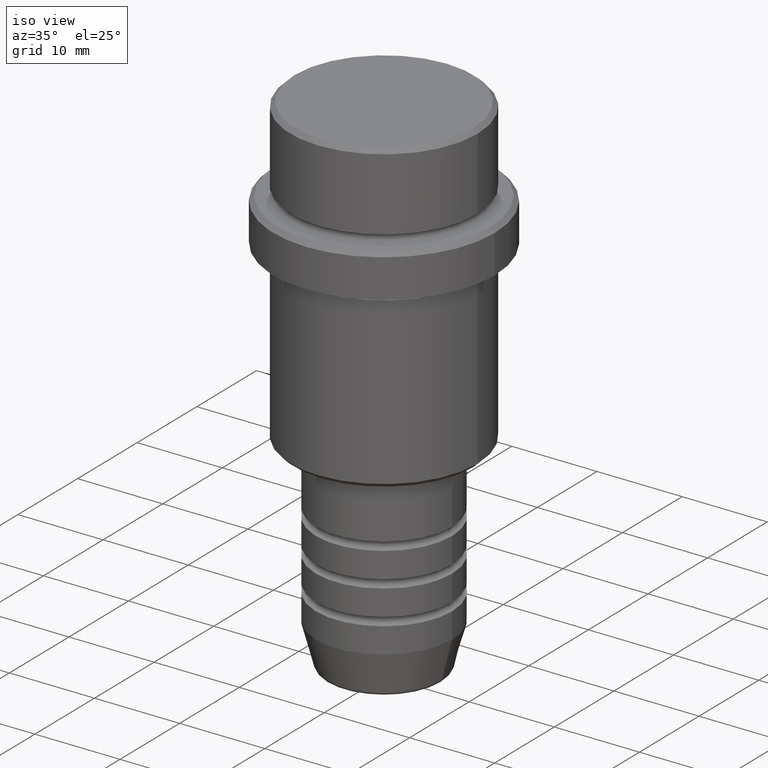
[diagram: clean part render]
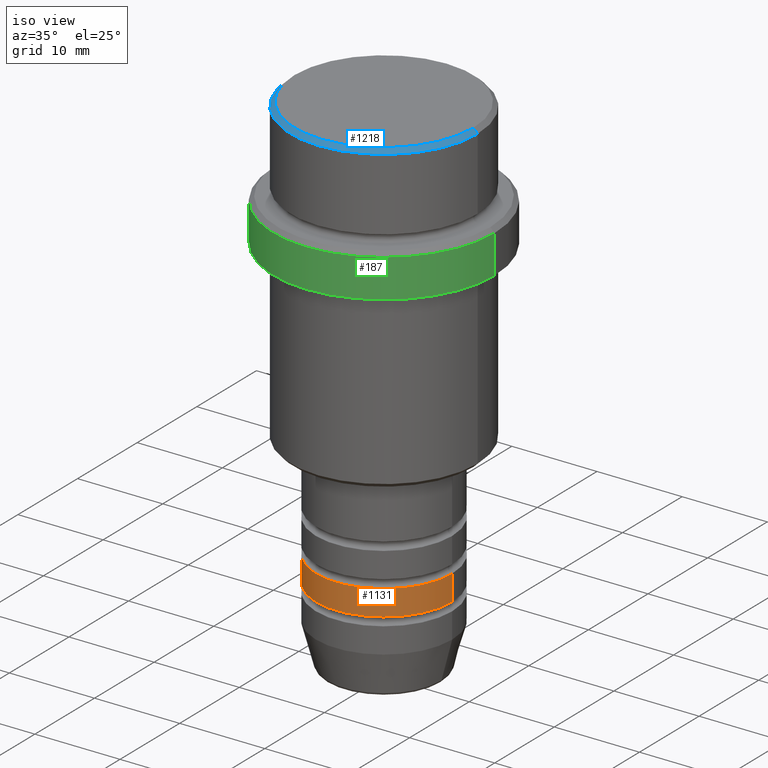
[diagram: same view with three faces highlighted in distinct colors, each labeled with its STEP entity id]
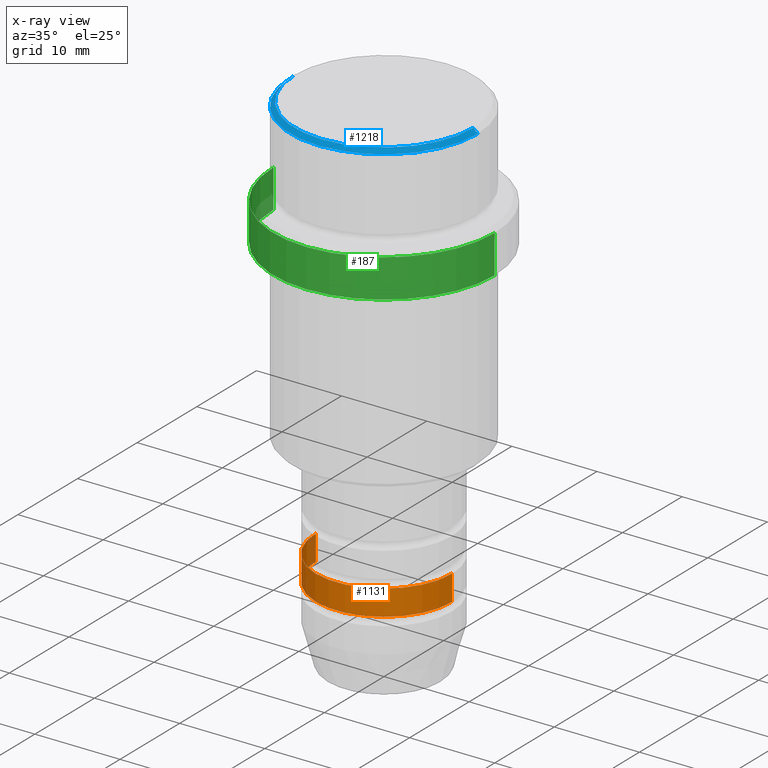
[diagram: x-ray of the same camera — body ghosted, the three highlighted faces saturated]
A machine part, iso view with three faces highlighted in distinct colors.
The next image is the same camera in x-ray (body ghosted, the three faces saturated) — at least one of them is partly hidden behind the body in this view.
Their STEP definitions:

[orange] entity #1131 — the highlighted cylindrical surface (partial cylindrical patch) has radius 8 mm, axis along (-0, -0, 1).
#48 = DIRECTION ( 'NONE',  ( 1.000000000000000000, 0.000000000000000000, 0.000000000000000000 ) ) ;
#63 = VERTEX_POINT ( 'NONE', #978 ) ;
#71 = LINE ( 'NONE', #1162, #369 ) ;
#151 = LINE ( 'NONE', #825, #703 ) ;
#166 = CARTESIAN_POINT ( 'NONE',  ( 0.000000000000000000, 0.000000000000000000, 0.000000000000000000 ) ) ;
#209 = DIRECTION ( 'NONE',  ( 1.000000000000000000, 0.000000000000000000, 0.000000000000000000 ) ) ;
#249 = EDGE_CURVE ( 'NONE', #468, #803, #860, .T. ) ;
#272 = FACE_OUTER_BOUND ( 'NONE', #1121, .T. ) ;
#363 = EDGE_CURVE ( 'NONE', #824, #63, #1342, .T. ) ;
#369 = VECTOR ( 'NONE', #704, 1000.000000000000000 ) ;
#468 = VERTEX_POINT ( 'NONE', #559 ) ;
#475 = AXIS2_PLACEMENT_3D ( 'NONE', #1087, #783, #882 ) ;
#510 = EDGE_CURVE ( 'NONE', #468, #824, #151, .T. ) ;
#529 = ORIENTED_EDGE ( 'NONE', *, *, #249, .T. ) ;
#559 = CARTESIAN_POINT ( 'NONE',  ( -8.000000000000000000, 9.797174393178825657E-16, -50.99999999999988631 ) ) ;
#676 = ORIENTED_EDGE ( 'NONE', *, *, #363, .F. ) ;
#678 = CARTESIAN_POINT ( 'NONE',  ( -8.000000000000000000, 9.797174393178825657E-16, -47.99999999999989342 ) ) ;
#697 = CARTESIAN_POINT ( 'NONE',  ( 8.000000000000000000, 0.000000000000000000, -50.99999999999988631 ) ) ;
#703 = VECTOR ( 'NONE', #1264, 1000.000000000000000 ) ;
#704 = DIRECTION ( 'NONE',  ( -0.000000000000000000, -0.000000000000000000, 1.000000000000000000 ) ) ;
#783 = DIRECTION ( 'NONE',  ( -0.000000000000000000, -0.000000000000000000, 1.000000000000000000 ) ) ;
#791 = CARTESIAN_POINT ( 'NONE',  ( 0.000000000000000000, 0.000000000000000000, -50.99999999999988631 ) ) ;
#803 = VERTEX_POINT ( 'NONE', #697 ) ;
#824 = VERTEX_POINT ( 'NONE', #678 ) ;
#825 = CARTESIAN_POINT ( 'NONE',  ( -8.000000000000000000, 9.797174393178825657E-16, 0.000000000000000000 ) ) ;
#860 = CIRCLE ( 'NONE', #1088, 8.000000000000000000 ) ;
#882 = DIRECTION ( 'NONE',  ( 1.000000000000000000, 0.000000000000000000, 0.000000000000000000 ) ) ;
#978 = CARTESIAN_POINT ( 'NONE',  ( 8.000000000000000000, 0.000000000000000000, -47.99999999999989342 ) ) ;
#1025 = ORIENTED_EDGE ( 'NONE', *, *, #510, .F. ) ;
#1031 = DIRECTION ( 'NONE',  ( -0.000000000000000000, -0.000000000000000000, 1.000000000000000000 ) ) ;
#1064 = ORIENTED_EDGE ( 'NONE', *, *, #1065, .T. ) ;
#1065 = EDGE_CURVE ( 'NONE', #803, #63, #71, .T. ) ;
#1087 = CARTESIAN_POINT ( 'NONE',  ( 0.000000000000000000, 0.000000000000000000, -47.99999999999989342 ) ) ;
#1088 = AXIS2_PLACEMENT_3D ( 'NONE', #791, #1031, #48 ) ;
#1121 = EDGE_LOOP ( 'NONE', ( #1025, #529, #1064, #676 ) ) ;
#1131 = ADVANCED_FACE ( 'NONE', ( #272 ), #1142, .T. ) ;
#1142 = CYLINDRICAL_SURFACE ( 'NONE', #1257, 8.000000000000000000 ) ;
#1162 = CARTESIAN_POINT ( 'NONE',  ( 8.000000000000000000, 0.000000000000000000, 0.000000000000000000 ) ) ;
#1257 = AXIS2_PLACEMENT_3D ( 'NONE', #166, #1285, #209 ) ;
#1264 = DIRECTION ( 'NONE',  ( -0.000000000000000000, -0.000000000000000000, 1.000000000000000000 ) ) ;
#1285 = DIRECTION ( 'NONE',  ( -0.000000000000000000, -0.000000000000000000, 1.000000000000000000 ) ) ;
#1342 = CIRCLE ( 'NONE', #475, 8.000000000000000000 ) ;

[blue] entity #1218 — the highlighted conical surface has half-angle 45 deg.
#18 = DIRECTION ( 'NONE',  ( 1.000000000000000000, 0.000000000000000000, 0.000000000000000000 ) ) ;
#50 = VERTEX_POINT ( 'NONE', #1085 ) ;
#70 = VERTEX_POINT ( 'NONE', #338 ) ;
#119 = AXIS2_PLACEMENT_3D ( 'NONE', #1174, #192, #1393 ) ;
#157 = CARTESIAN_POINT ( 'NONE',  ( -10.50000000000000888, 0.000000000000000000, 0.000000000000000000 ) ) ;
#192 = DIRECTION ( 'NONE',  ( 0.000000000000000000, 0.000000000000000000, -1.000000000000000000 ) ) ;
#202 = EDGE_CURVE ( 'NONE', #1101, #70, #268, .T. ) ;
#206 = DIRECTION ( 'NONE',  ( 1.000000000000000000, 0.000000000000000000, 0.000000000000000000 ) ) ;
#254 = EDGE_LOOP ( 'NONE', ( #607, #849, #881, #937 ) ) ;
#268 = LINE ( 'NONE', #157, #387 ) ;
#328 = FACE_OUTER_BOUND ( 'NONE', #254, .T. ) ;
#331 = EDGE_CURVE ( 'NONE', #50, #70, #1274, .T. ) ;
#338 = CARTESIAN_POINT ( 'NONE',  ( -10.99999999999998757, 1.347111479062086827E-15, -0.4999999999999813483 ) ) ;
#348 = CONICAL_SURFACE ( 'NONE', #119, 10.50000000000000888, 0.7853981633974447263 ) ;
#387 = VECTOR ( 'NONE', #580, 1000.000000000000114 ) ;
#524 = CARTESIAN_POINT ( 'NONE',  ( 10.50000000000000888, 1.285879139104722014E-15, 0.000000000000000000 ) ) ;
#564 = CARTESIAN_POINT ( 'NONE',  ( 0.000000000000000000, 0.000000000000000000, 0.000000000000000000 ) ) ;
#580 = DIRECTION ( 'NONE',  ( -0.7071067811865451302, 0.000000000000000000, -0.7071067811865500152 ) ) ;
#584 = EDGE_CURVE ( 'NONE', #1378, #50, #1176, .T. ) ;
#607 = ORIENTED_EDGE ( 'NONE', *, *, #584, .F. ) ;
#632 = CIRCLE ( 'NONE', #1187, 10.50000000000000888 ) ;
#711 = CARTESIAN_POINT ( 'NONE',  ( 10.50000000000000888, 1.316495309083404420E-15, 0.000000000000000000 ) ) ;
#743 = CARTESIAN_POINT ( 'NONE',  ( 0.000000000000000000, 0.000000000000000000, -0.4999999999999813483 ) ) ;
#759 = EDGE_CURVE ( 'NONE', #1101, #1378, #632, .T. ) ;
#849 = ORIENTED_EDGE ( 'NONE', *, *, #759, .F. ) ;
#881 = ORIENTED_EDGE ( 'NONE', *, *, #202, .T. ) ;
#937 = ORIENTED_EDGE ( 'NONE', *, *, #331, .F. ) ;
#1044 = AXIS2_PLACEMENT_3D ( 'NONE', #743, #1404, #206 ) ;
#1085 = CARTESIAN_POINT ( 'NONE',  ( 10.99999999999998757, 0.000000000000000000, -0.4999999999999813483 ) ) ;
#1101 = VERTEX_POINT ( 'NONE', #1251 ) ;
#1174 = CARTESIAN_POINT ( 'NONE',  ( 0.000000000000000000, 0.000000000000000000, 0.000000000000000000 ) ) ;
#1176 = LINE ( 'NONE', #524, #1365 ) ;
#1184 = DIRECTION ( 'NONE',  ( 0.7071067811865451302, 8.659560562354903276E-17, -0.7071067811865500152 ) ) ;
#1187 = AXIS2_PLACEMENT_3D ( 'NONE', #564, #1330, #18 ) ;
#1218 = ADVANCED_FACE ( 'NONE', ( #328 ), #348, .T. ) ;
#1251 = CARTESIAN_POINT ( 'NONE',  ( -10.50000000000000888, 0.000000000000000000, 0.000000000000000000 ) ) ;
#1274 = CIRCLE ( 'NONE', #1044, 10.99999999999998757 ) ;
#1330 = DIRECTION ( 'NONE',  ( -0.000000000000000000, -0.000000000000000000, 1.000000000000000000 ) ) ;
#1365 = VECTOR ( 'NONE', #1184, 1000.000000000000114 ) ;
#1378 = VERTEX_POINT ( 'NONE', #711 ) ;
#1393 = DIRECTION ( 'NONE',  ( -1.000000000000000000, 0.000000000000000000, 0.000000000000000000 ) ) ;
#1404 = DIRECTION ( 'NONE',  ( 0.000000000000000000, 0.000000000000000000, -1.000000000000000000 ) ) ;

[green] entity #187 — the highlighted cylindrical surface (partial cylindrical patch) has radius 13 mm, axis along (-0, -0, 1).
#15 = CARTESIAN_POINT ( 'NONE',  ( 13.00000000000000000, 0.000000000000000000, -15.00000000000000178 ) ) ;
#54 = DIRECTION ( 'NONE',  ( -0.000000000000000000, -0.000000000000000000, 1.000000000000000000 ) ) ;
#55 = ORIENTED_EDGE ( 'NONE', *, *, #1248, .T. ) ;
#143 = EDGE_CURVE ( 'NONE', #941, #349, #1198, .T. ) ;
#187 = ADVANCED_FACE ( 'NONE', ( #927 ), #689, .T. ) ;
#190 = LINE ( 'NONE', #847, #394 ) ;
#216 = CARTESIAN_POINT ( 'NONE',  ( -13.00000000000000000, 1.592040838891559095E-15, 0.000000000000000000 ) ) ;
#223 = AXIS2_PLACEMENT_3D ( 'NONE', #929, #1126, #1374 ) ;
#349 = VERTEX_POINT ( 'NONE', #973 ) ;
#382 = DIRECTION ( 'NONE',  ( -0.000000000000000000, -0.000000000000000000, 1.000000000000000000 ) ) ;
#391 = CIRCLE ( 'NONE', #223, 13.00000000000000000 ) ;
#394 = VECTOR ( 'NONE', #403, 1000.000000000000000 ) ;
#399 = VERTEX_POINT ( 'NONE', #15 ) ;
#403 = DIRECTION ( 'NONE',  ( -0.000000000000000000, -0.000000000000000000, 1.000000000000000000 ) ) ;
#406 = CARTESIAN_POINT ( 'NONE',  ( 0.000000000000000000, 0.000000000000000000, -15.00000000000000178 ) ) ;
#506 = EDGE_CURVE ( 'NONE', #719, #349, #391, .T. ) ;
#536 = CARTESIAN_POINT ( 'NONE',  ( 13.00000000000000000, 0.000000000000000000, -10.50000000000000000 ) ) ;
#604 = CARTESIAN_POINT ( 'NONE',  ( -13.00000000000000000, 1.592040838891559095E-15, -15.00000000000000178 ) ) ;
#624 = DIRECTION ( 'NONE',  ( -0.000000000000000000, -0.000000000000000000, 1.000000000000000000 ) ) ;
#689 = CYLINDRICAL_SURFACE ( 'NONE', #1253, 13.00000000000000000 ) ;
#700 = ORIENTED_EDGE ( 'NONE', *, *, #506, .T. ) ;
#717 = EDGE_LOOP ( 'NONE', ( #1040, #1179, #55, #700 ) ) ;
#719 = VERTEX_POINT ( 'NONE', #536 ) ;
#847 = CARTESIAN_POINT ( 'NONE',  ( 13.00000000000000000, 0.000000000000000000, 0.000000000000000000 ) ) ;
#927 = FACE_OUTER_BOUND ( 'NONE', #717, .T. ) ;
#929 = CARTESIAN_POINT ( 'NONE',  ( 0.000000000000000000, 0.000000000000000000, -10.50000000000000000 ) ) ;
#933 = DIRECTION ( 'NONE',  ( 1.000000000000000000, 0.000000000000000000, 0.000000000000000000 ) ) ;
#941 = VERTEX_POINT ( 'NONE', #604 ) ;
#948 = VECTOR ( 'NONE', #54, 1000.000000000000000 ) ;
#973 = CARTESIAN_POINT ( 'NONE',  ( -13.00000000000000000, 1.592040838891559095E-15, -10.50000000000000000 ) ) ;
#1007 = EDGE_CURVE ( 'NONE', #941, #399, #1303, .T. ) ;
#1040 = ORIENTED_EDGE ( 'NONE', *, *, #143, .F. ) ;
#1071 = AXIS2_PLACEMENT_3D ( 'NONE', #406, #382, #933 ) ;
#1120 = DIRECTION ( 'NONE',  ( 1.000000000000000000, 0.000000000000000000, 0.000000000000000000 ) ) ;
#1124 = CARTESIAN_POINT ( 'NONE',  ( 0.000000000000000000, 0.000000000000000000, 0.000000000000000000 ) ) ;
#1126 = DIRECTION ( 'NONE',  ( 0.000000000000000000, 0.000000000000000000, -1.000000000000000000 ) ) ;
#1179 = ORIENTED_EDGE ( 'NONE', *, *, #1007, .T. ) ;
#1198 = LINE ( 'NONE', #216, #948 ) ;
#1248 = EDGE_CURVE ( 'NONE', #399, #719, #190, .T. ) ;
#1253 = AXIS2_PLACEMENT_3D ( 'NONE', #1124, #624, #1120 ) ;
#1303 = CIRCLE ( 'NONE', #1071, 13.00000000000000000 ) ;
#1374 = DIRECTION ( 'NONE',  ( 1.000000000000000000, 0.000000000000000000, 0.000000000000000000 ) ) ;